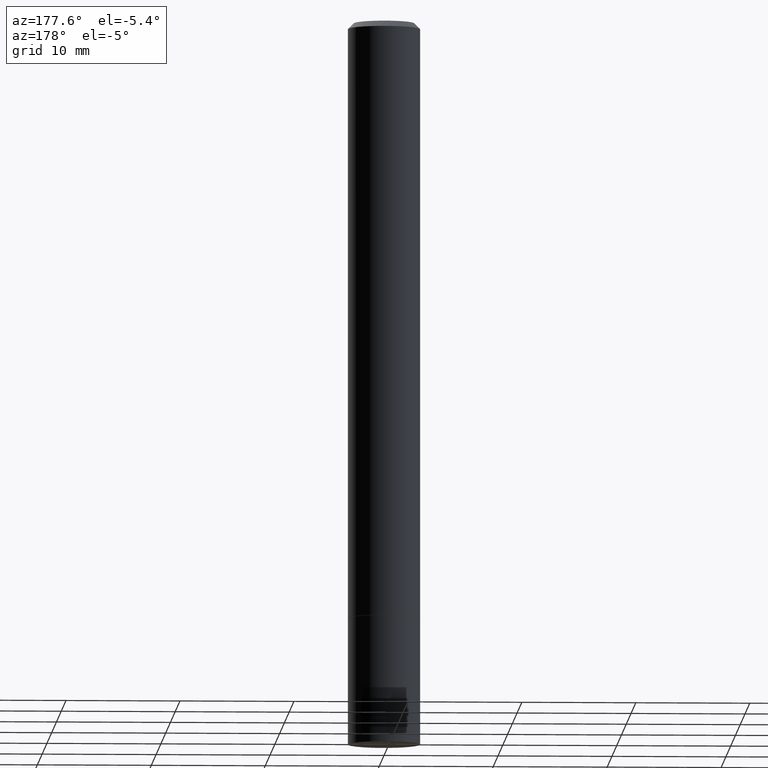
[diagram: clean part render]
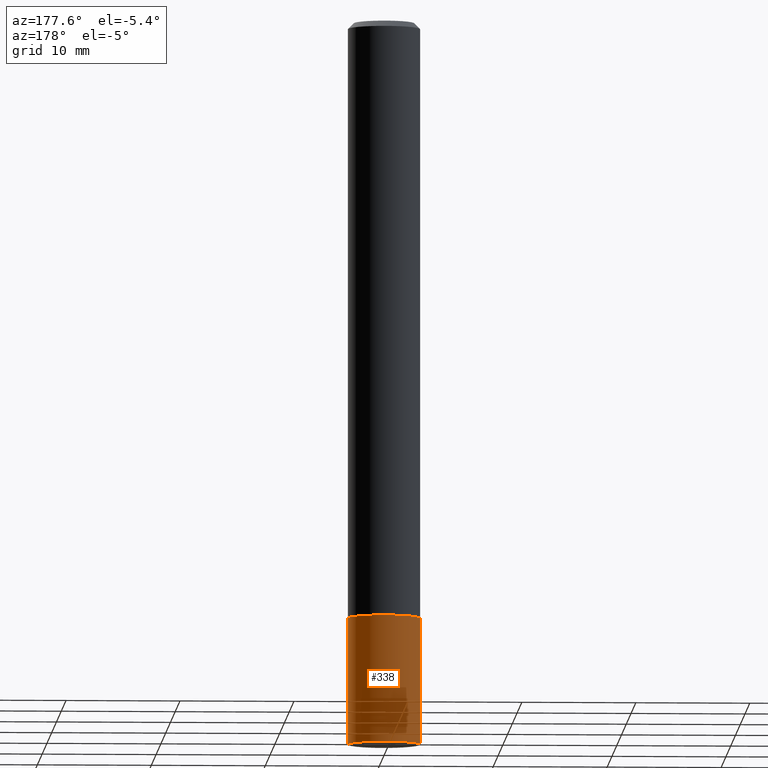
[diagram: same view with one face highlighted and labeled with its STEP entity id]
A machine part, auxiliary view. The second image highlights one B-rep face of the part: STEP entity #338.
In plain terms, the highlighted cylindrical surface (edge-blend (fillet) strip) has radius 3.175 mm, axis along (-0, 0, 1).
Its self-contained STEP definition (entity closure, byte-faithful):
#28 = VERTEX_POINT ( 'NONE', #58 ) ;
#41 = VERTEX_POINT ( 'NONE', #152 ) ;
#45 = DIRECTION ( 'NONE',  ( 1.000000000000000000, -6.982962677686266711E-15, 4.876176775795935793E-29 ) ) ;
#58 = CARTESIAN_POINT ( 'NONE',  ( 0.1250000000000000000, -8.074050596074771916E-15, -2.062500000000000000 ) ) ;
#66 = VECTOR ( 'NONE', #185, 39.37007874015748143 ) ;
#67 = LINE ( 'NONE', #132, #66 ) ;
#81 = CIRCLE ( 'NONE', #118, 0.1250000000000000000 ) ;
#101 = EDGE_CURVE ( 'NONE', #41, #380, #67, .T. ) ;
#106 = DIRECTION ( 'NONE',  ( -2.445468806185136597E-29, 3.491481338843145583E-15, 1.000000000000000000 ) ) ;
#118 = AXIS2_PLACEMENT_3D ( 'NONE', #169, #378, #286 ) ;
#132 = CARTESIAN_POINT ( 'NONE',  ( -0.1250000000000000000, 8.881784197001252323E-16, -6.148668862818632227E-30 ) ) ;
#140 = CYLINDRICAL_SURFACE ( 'NONE', #301, 0.1250000000000000000 ) ;
#142 = CARTESIAN_POINT ( 'NONE',  ( -0.1250000000000000000, -7.076763384535801528E-15, -2.062500000000000000 ) ) ;
#145 = ORIENTED_EDGE ( 'NONE', *, *, #317, .T. ) ;
#152 = CARTESIAN_POINT ( 'NONE',  ( -0.1250000000000006661, -7.855833012397075293E-15, -2.500000000000000000 ) ) ;
#154 = VERTEX_POINT ( 'NONE', #305 ) ;
#169 = CARTESIAN_POINT ( 'NONE',  ( 6.113672015462842613E-29, -8.728703347107864943E-15, -2.500000000000000000 ) ) ;
#177 = AXIS2_PLACEMENT_3D ( 'NONE', #344, #106, #288 ) ;
#185 = DIRECTION ( 'NONE',  ( -2.445468806185136877E-29, 3.491481338843145188E-15, 1.000000000000000000 ) ) ;
#186 = CARTESIAN_POINT ( 'NONE',  ( 0.1250000000000000000, -8.728703347107833388E-16, 6.095220969744919741E-30 ) ) ;
#200 = FACE_OUTER_BOUND ( 'NONE', #238, .T. ) ;
#209 = EDGE_CURVE ( 'NONE', #154, #28, #218, .T. ) ;
#218 = LINE ( 'NONE', #186, #375 ) ;
#238 = EDGE_LOOP ( 'NONE', ( #145, #377, #357, #388 ) ) ;
#254 = CARTESIAN_POINT ( 'NONE',  ( 0.000000000000000000, 0.000000000000000000, 0.000000000000000000 ) ) ;
#257 = DIRECTION ( 'NONE',  ( -2.445468806185136597E-29, 3.491481338843145583E-15, 1.000000000000000000 ) ) ;
#286 = DIRECTION ( 'NONE',  ( 1.000000000000000000, -6.982962677686270655E-15, 0.000000000000000000 ) ) ;
#288 = DIRECTION ( 'NONE',  ( 1.000000000000000000, -6.982962677686270655E-15, 0.000000000000000000 ) ) ;
#301 = AXIS2_PLACEMENT_3D ( 'NONE', #254, #257, #45 ) ;
#305 = CARTESIAN_POINT ( 'NONE',  ( 0.1250000000000006661, -9.586265596829311121E-15, -2.500000000000000000 ) ) ;
#317 = EDGE_CURVE ( 'NONE', #154, #41, #81, .T. ) ;
#338 = ADVANCED_FACE ( 'NONE', ( #200 ), #140, .T. ) ;
#344 = CARTESIAN_POINT ( 'NONE',  ( 5.043779412756844791E-29, -7.201180261363988578E-15, -2.062500000000000000 ) ) ;
#357 = ORIENTED_EDGE ( 'NONE', *, *, #361, .F. ) ;
#361 = EDGE_CURVE ( 'NONE', #28, #380, #381, .T. ) ;
#367 = DIRECTION ( 'NONE',  ( -2.445468806185136877E-29, 3.491481338843145188E-15, 1.000000000000000000 ) ) ;
#375 = VECTOR ( 'NONE', #367, 39.37007874015748143 ) ;
#377 = ORIENTED_EDGE ( 'NONE', *, *, #101, .T. ) ;
#378 = DIRECTION ( 'NONE',  ( -2.445468806185136597E-29, 3.491481338843145583E-15, 1.000000000000000000 ) ) ;
#380 = VERTEX_POINT ( 'NONE', #142 ) ;
#381 = CIRCLE ( 'NONE', #177, 0.1250000000000000000 ) ;
#388 = ORIENTED_EDGE ( 'NONE', *, *, #209, .F. ) ;